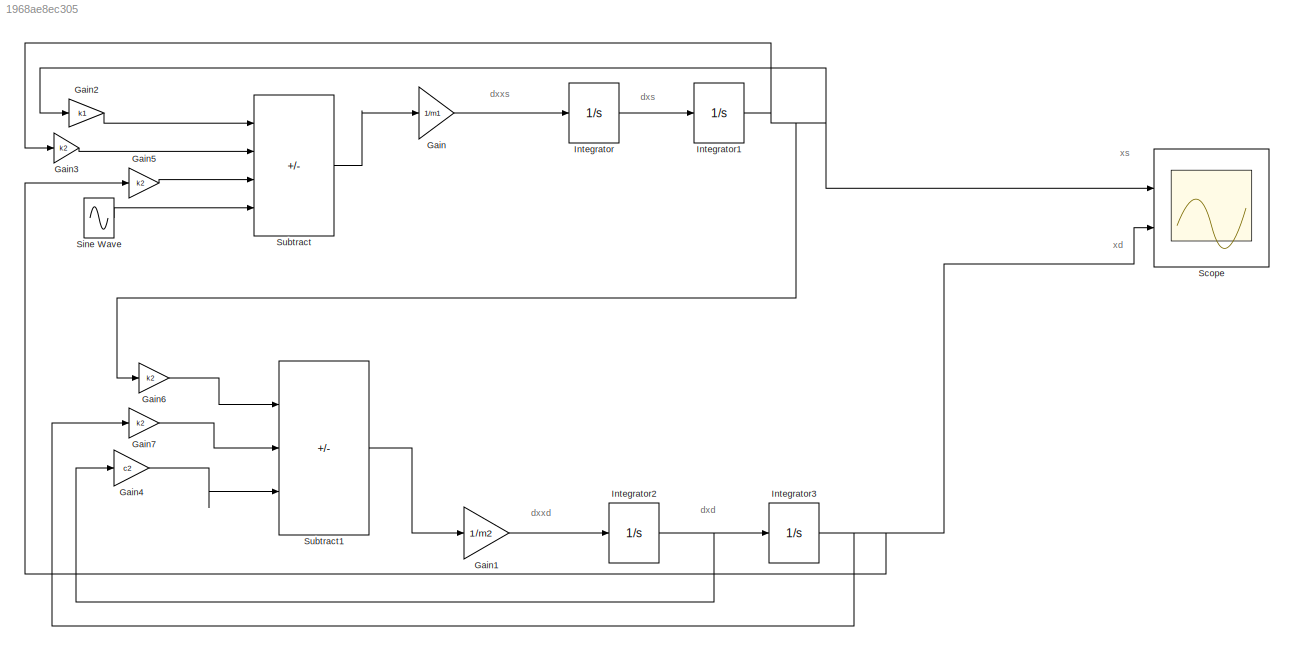
MODEL slx_1968ae8ec305
KIND model
CONFIG AbsTol = auto
CONFIG EnableMultiTasking = off
CONFIG FixedStep = auto
CONFIG MaxStep = auto
CONFIG MinStep = auto
CONFIG RelTol = 1e-3
CONFIG SampleTimeConstraint = Unconstrained
CONFIG SolverName = VariableStepAuto
CONFIG StartTime = 0.0
CONFIG StopTime = 20
BLOCK [Gain] Gain
  Gain = 1/m1
BLOCK [Gain] Gain1
  Gain = 1/m2
BLOCK [Gain] Gain2
  Gain = k1
BLOCK [Gain] Gain3
  Gain = k2
BLOCK [Gain] Gain4
  Gain = c2
BLOCK [Gain] Gain5
  Gain = k2
BLOCK [Gain] Gain6
  Gain = k2
BLOCK [Gain] Gain7
  Gain = k2
BLOCK [Integrator] Integrator
  Ports = [1, 1]
BLOCK [Integrator] Integrator1
  Ports = [1, 1]
BLOCK [Integrator] Integrator2
  Ports = [1, 1]
BLOCK [Integrator] Integrator3
  Ports = [1, 1]
BLOCK [Scope] Scope
  Floating = off
  NumInputPorts = 2
  Ports = [2]
  ScopeSpecificationString = Simulink.scopes.TimeScopeBlockCfg('CurrentConfiguration', extmgr.ConfigurationSet(extmgr.Configuration('Core','General UI',true),extmgr.Configuration('Core','Source UI',true),extmgr.Configuration('Sources','WiredSimulink',true),extmgr.Configuration('Visuals','Time Domain',true,'SerializedDisplays',{struct('MinYLimReal','-0.269','MaxYLimReal','0.42119','YLabelReal','','MinYLimMag','0.00000','MaxYLi...<+1521ch>
BLOCK [Sin] Sine Wave
  Amplitude = 20
  Frequency = 6
  Ports = [0, 1]
  SampleTime = 0
BLOCK [Sum] Subtract
  IconShape = rectangular
  Inputs = --++
  Ports = [4, 1]
BLOCK [Sum] Subtract1
  IconShape = rectangular
  Inputs = +--
  Ports = [3, 1]
ANNOTATION (root): dxxd
ANNOTATION (root): dxd
ANNOTATION (root): dxs
ANNOTATION (root): dxxs
ANNOTATION (root): xd
ANNOTATION (root): xs
LINE Gain1:1 -> Integrator2:1
LINE Gain2:1 -> Subtract:1
LINE Gain3:1 -> Subtract:2
LINE Gain4:1 -> Subtract1:3
LINE Gain5:1 -> Subtract:3
LINE Gain6:1 -> Subtract1:1
LINE Gain7:1 -> Subtract1:2
LINE Gain:1 -> Integrator:1
NET Integrator1:1 -> Gain2:1, Gain3:1, Gain6:1, Scope:1
NET Integrator2:1 -> Gain4:1, Integrator3:1
NET Integrator3:1 -> Gain5:1, Gain7:1, Scope:2
LINE Integrator:1 -> Integrator1:1
LINE Sine Wave:1 -> Subtract:4
LINE Subtract1:1 -> Gain1:1
LINE Subtract:1 -> Gain:1
note: NET lines group one-source signal fan-out (src -> all destinations, sorted); 1:1 wires keep LINE
